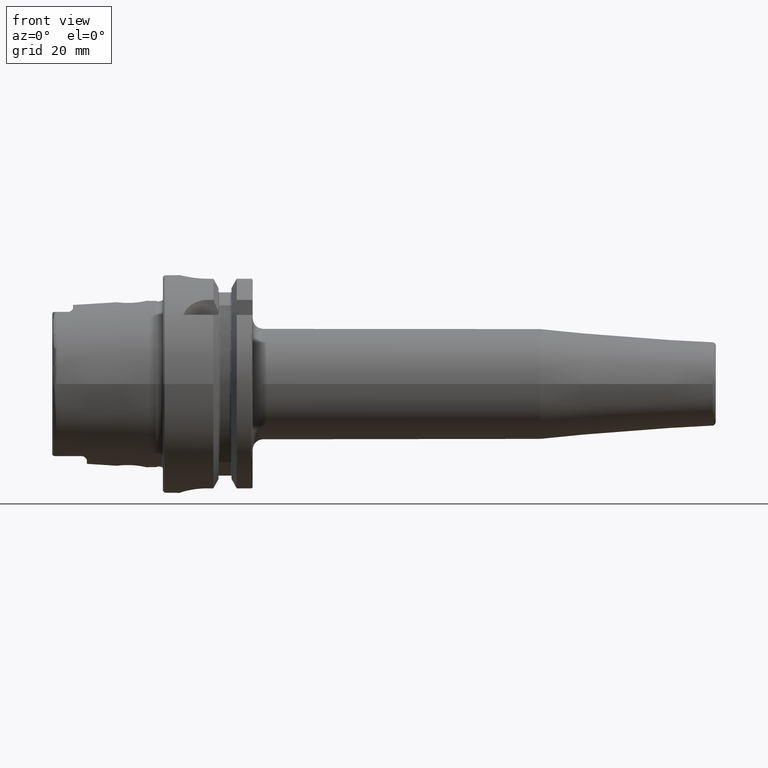
[diagram: clean part render]
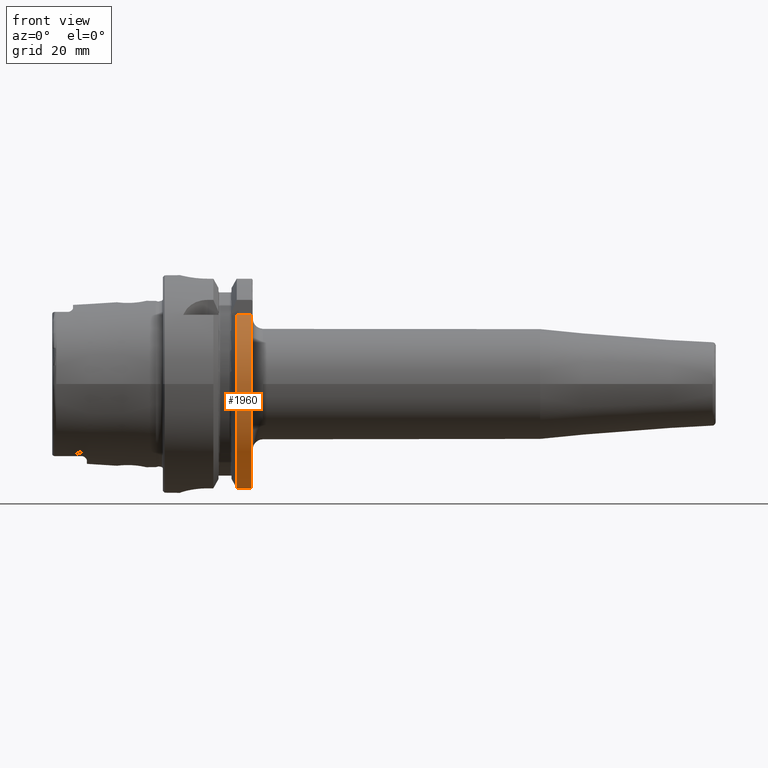
[diagram: same view with one face highlighted and labeled with its STEP entity id]
A machine part, front view. The second image highlights one B-rep face of the part: STEP entity #1960.
In plain terms, the highlighted cylindrical surface (partial cylindrical patch) has radius 31.5 mm, axis along (1, 0, 0).
Its self-contained STEP definition (entity closure, byte-faithful):
#246=FACE_OUTER_BOUND('',#366,.T.);
#366=EDGE_LOOP('',(#1586,#1587,#1588,#1589));
#469=LINE('',#3694,#573);
#485=LINE('',#3829,#589);
#573=VECTOR('',#2496,10.);
#589=VECTOR('',#2556,10.);
#700=CIRCLE('',#2168,31.5);
#702=CIRCLE('',#2172,31.5);
#853=VERTEX_POINT('',#3689);
#854=VERTEX_POINT('',#3693);
#879=VERTEX_POINT('',#3817);
#880=VERTEX_POINT('',#3828);
#1081=EDGE_CURVE('',#854,#853,#469,.T.);
#1119=EDGE_CURVE('',#880,#879,#485,.T.);
#1164=EDGE_CURVE('',#854,#879,#700,.T.);
#1167=EDGE_CURVE('',#853,#880,#702,.T.);
#1586=ORIENTED_EDGE('',*,*,#1081,.T.);
#1587=ORIENTED_EDGE('',*,*,#1167,.T.);
#1588=ORIENTED_EDGE('',*,*,#1119,.T.);
#1589=ORIENTED_EDGE('',*,*,#1164,.F.);
#1885=CYLINDRICAL_SURFACE('',#2171,31.5);
#1960=ADVANCED_FACE('',(#246),#1885,.T.);
#2168=AXIS2_PLACEMENT_3D('',#4034,#2617,#2618);
#2171=AXIS2_PLACEMENT_3D('',#4039,#2624,#2625);
#2172=AXIS2_PLACEMENT_3D('',#4040,#2626,#2627);
#2496=DIRECTION('',(-1.,0.,0.));
#2556=DIRECTION('',(1.,0.,0.));
#2617=DIRECTION('center_axis',(1.,0.,0.));
#2618=DIRECTION('ref_axis',(0.,0.,-1.));
#2624=DIRECTION('center_axis',(1.,0.,0.));
#2625=DIRECTION('ref_axis',(0.,-0.956344671622108,-0.292241114595468));
#2626=DIRECTION('center_axis',(1.,0.,0.));
#2627=DIRECTION('ref_axis',(0.,0.,-1.));
#3689=CARTESIAN_POINT('',(21.3774990747593,-24.3361870472759,20.));
#3693=CARTESIAN_POINT('',(25.5,-24.3361870472759,20.));
#3694=CARTESIAN_POINT('',(23.4387495373797,-24.3361870472759,20.));
#3817=CARTESIAN_POINT('',(25.5,-9.,-30.1869176962472));
#3828=CARTESIAN_POINT('',(21.3774990747593,-9.,-30.1869176962472));
#3829=CARTESIAN_POINT('',(23.4387495373797,-9.,-30.1869176962472));
#4034=CARTESIAN_POINT('Origin',(25.5,0.,0.));
#4039=CARTESIAN_POINT('Origin',(23.4387495373797,0.,0.));
#4040=CARTESIAN_POINT('Origin',(21.3774990747593,0.,0.));